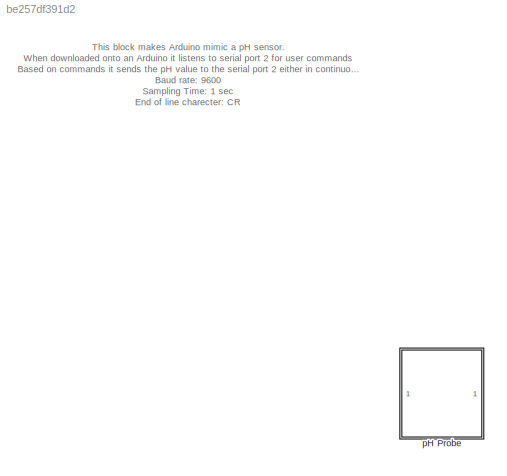
MODEL slx_be257df391d2
KIND model
CONFIG AbsTol = auto
CONFIG EnableMultiTasking = on
CONFIG FixedStep = 1
CONFIG MaxStep = auto
CONFIG MinStep = auto
CONFIG RelTol = 1e-3
CONFIG SampleTimeConstraint = Unconstrained
CONFIG Solver = FixedStepDiscrete
CONFIG SolverName = FixedStepDiscrete
CONFIG StartTime = 0.0
CONFIG StopTime = inf
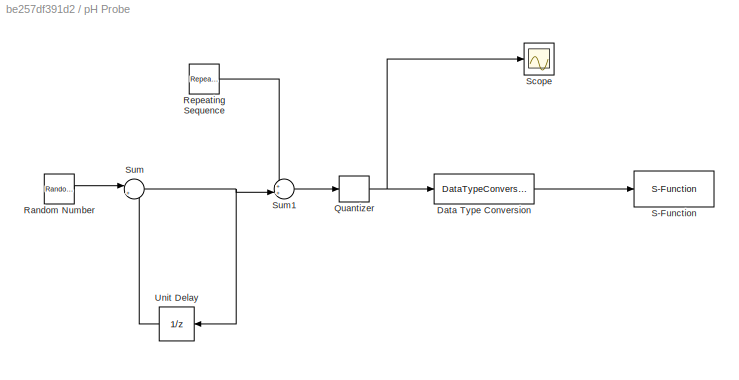
BLOCK [SubSystem] pH Probe
  Description = pH probe
  Ports = []
  RequestExecContextInheritance = off
  Variant = off
BLOCK [DataTypeConversion] pH Probe/Data Type Conversion
  RndMeth = Floor
  SaturateOnIntegerOverflow = off
BLOCK [Quantizer] pH Probe/Quantizer
  QuantizationInterval = 0.04
BLOCK [RandomNumber] pH Probe/Random Number
  SampleTime = 1
  Variance = 0.00005
BLOCK [Reference] pH Probe/Repeating Sequence  REF=simulink/Sources/Repeating
Sequence
  Ports = [0, 1]
  SourceBlock = simulink/Sources/Repeating\nSequence
  SourceType = Repeating table
BLOCK [S-Function] pH Probe/S-Function
  EnableBusSupport = off
  FunctionName = pHSensor
  Parameters = int8(2)
  Ports = [1]
  SFcnIsStateOwnerBlock = off
  SFunctionDeploymentMode = off
  SFunctionModules = pHSensor_wrapper
BLOCK [Scope] pH Probe/Scope
  NumInputPorts = 1
  Ports = [1]
  ScopeSpecificationString = C++SS(StrPVP('SaveName','ScopeData'),StrPVP('LimitDataPoints','on'),StrPVP('DataFormat','Array'),StrPVP('Decimation','1'),StrPVP('BlockParamSampleInput','off'))
BLOCK [Sum] pH Probe/Sum
  IconShape = round
  InputSameDT = off
  Inputs = |++
  OutDataTypeStr = Inherit: Inherit via internal rule
  Ports = [2, 1]
  SaturateOnIntegerOverflow = off
BLOCK [Sum] pH Probe/Sum1
  IconShape = round
  InputSameDT = off
  Inputs = ++|
  OutDataTypeStr = Inherit: Inherit via internal rule
  Ports = [2, 1]
  SaturateOnIntegerOverflow = off
BLOCK [UnitDelay] pH Probe/Unit Delay
  InitialCondition = 6+2*rand
  InputProcessing = Elements as channels (sample based)
ANNOTATION (root): This block makes Arduino mimic a pH sensor. When downloaded onto an Arduino it listens to serial port 2 for user commands Based on commands it sends the pH value to the serial port 2 either in continuous or single-read mode. Baud rate: 9600 Sampling Time: 1 sec End of line charecter: CR Send following commands using Serial communication Continous read command start C,1 Continous read command stop ...<+17ch>
LINE pH Probe/Data Type Conversion:1 -> pH Probe/S-Function:1
NET pH Probe/Quantizer:1 -> pH Probe/Data Type Conversion:1, pH Probe/Scope:1
LINE pH Probe/Random Number:1 -> pH Probe/Sum:1
LINE pH Probe/Repeating Sequence:1 -> pH Probe/Sum1:1
LINE pH Probe/Sum1:1 -> pH Probe/Quantizer:1
NET pH Probe/Sum:1 -> pH Probe/Sum1:2, pH Probe/Unit Delay:1
LINE pH Probe/Unit Delay:1 -> pH Probe/Sum:2
note: NET lines group one-source signal fan-out (src -> all destinations, sorted); 1:1 wires keep LINE
